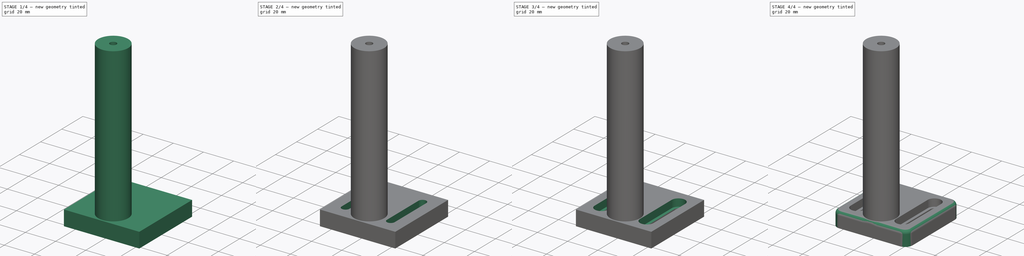
[diagram: build sequence overview — one tinted view per stage of 4, left to right]
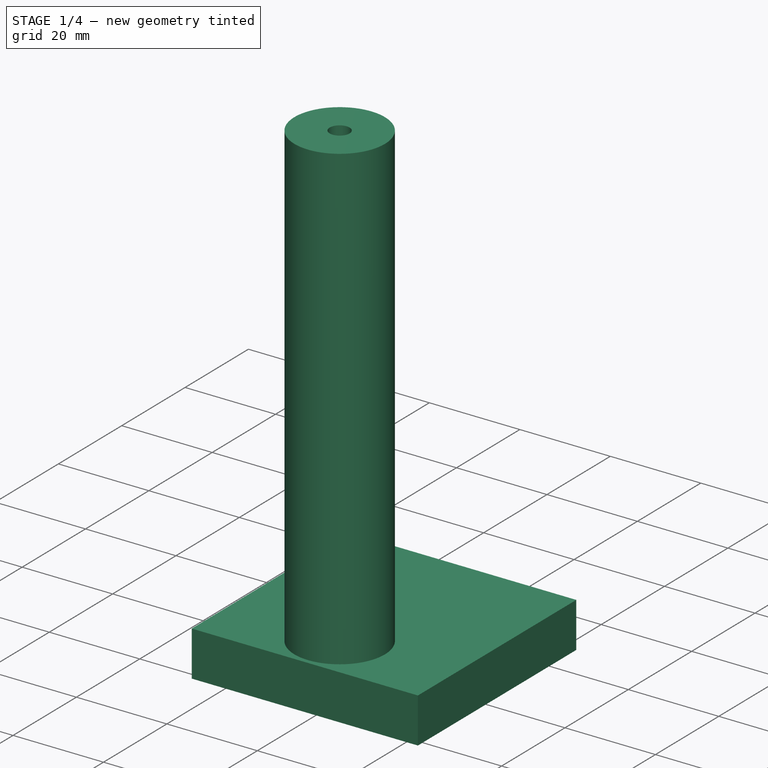
[diagram: stage 1 of 4 — iso view after this stage's code; geometry added in this stage tinted green]
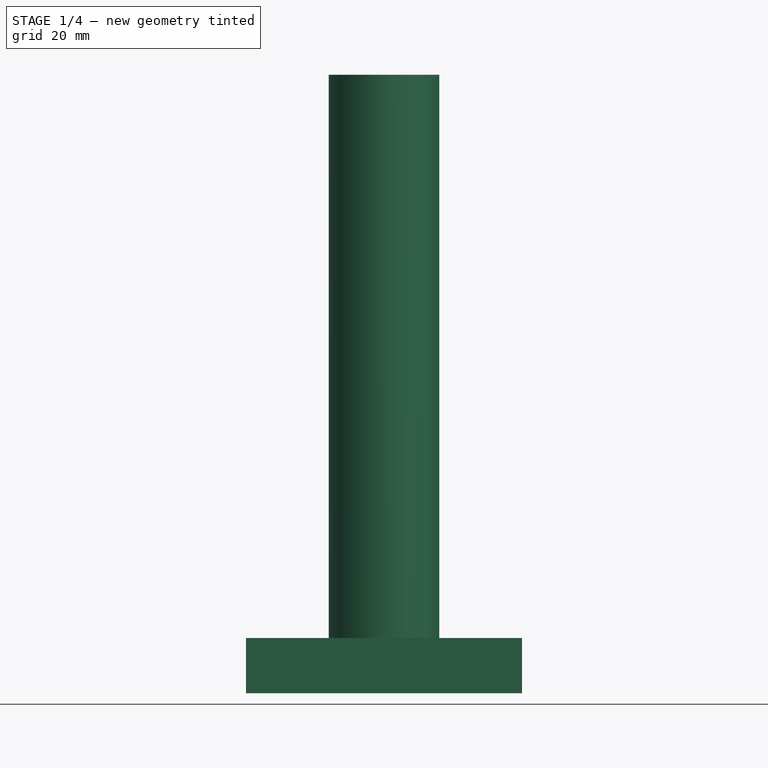
[diagram: stage 1 of 4 — front view after this stage's code; geometry added in this stage tinted green]
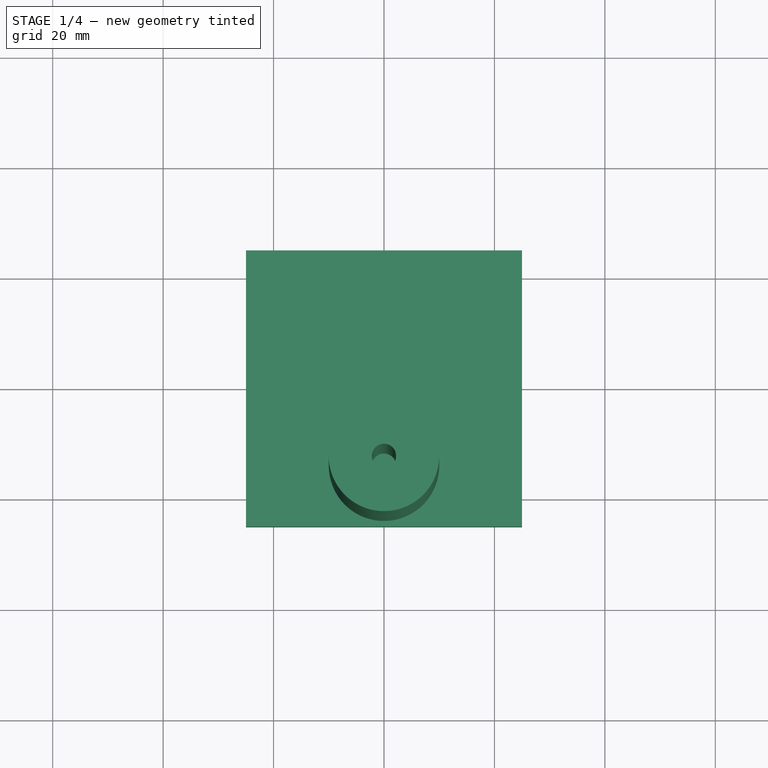
[diagram: stage 1 of 4 — top view after this stage's code; geometry added in this stage tinted green]
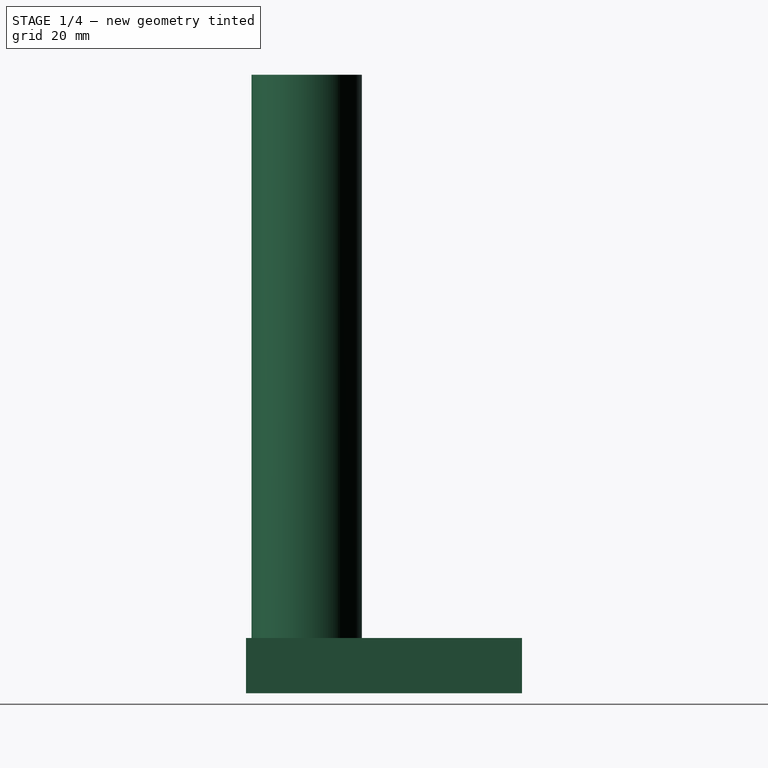
[diagram: stage 1 of 4 — right view after this stage's code; geometry added in this stage tinted green]
FCSTD DOCUMENT  (FreeCAD 0.21R33771 (Git))
Label: bellcrank mount
License: Public Domain
LicenseURL: https://en.wikipedia.org/wiki/Public_domain
objects: Sketcher::SketchObject×2, Part::Extrusion×2, Part::Cut×2, Part::Fillet×2, PartDesign::Line×2, Part::Box×1, PartDesign::CoordinateSystem×1, App::FeaturePython×1, Part::FeaturePython×1, Part::MultiFuse×1, App::Part×1
note: 14 computed .brp shape members not serialized (recipe doc carries the construction recipe); baked Part::Feature solids carry a one-line shape summary decoded from their .brp

FEATURE [Part::Box] Box  label="Cube"
  AttacherType = Attacher::AttachEngine3D
  Height = 10
  Length = 50
  Placement = pos=(-25,-25,0) rot=(0,0,1;0rad)
  Width = 50
  expr: .Placement.Base.x = -1 * Variables.width / 2
  expr: .Placement.Base.y = -1 * Variables.Length / 2
  expr: Length = Variables.width
  expr: Width = Variables.Length
FEATURE [App::FeaturePython] Variables  # WARN: FeaturePython — macro-defined, semantics opaque (R4)
  Length = 50
  Thickness = 10
  Type = App::PropertyContainer
  width = 50
FEATURE [Part::FeaturePython] Tube  # WARN: FeaturePython — macro-defined, semantics opaque (R4)
  AttacherType = Attacher::AttachEngine3D
  Height = 112
  InnerRadius = 2.2
  OuterRadius = 10
  Placement = pos=(0,-14,0) rot=(0,0,1;0rad)
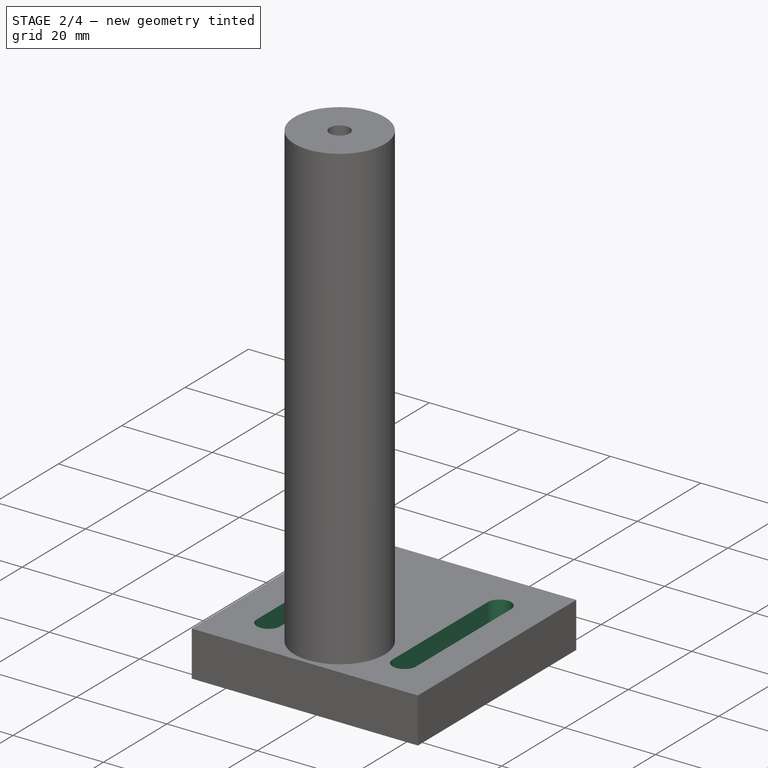
[diagram: stage 2 of 4 — iso view after this stage's code; geometry added in this stage tinted green]
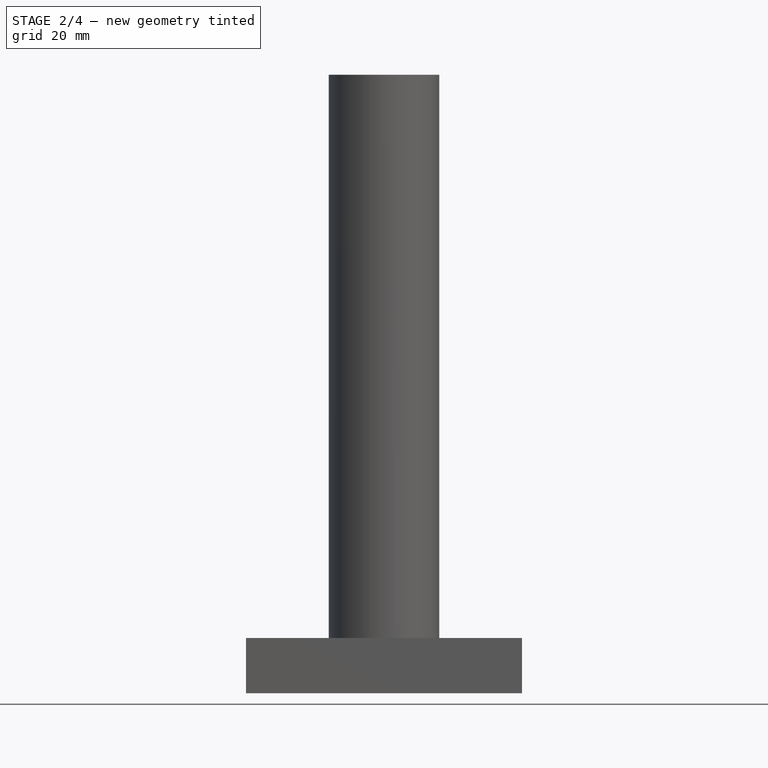
[diagram: stage 2 of 4 — front view after this stage's code; geometry added in this stage tinted green]
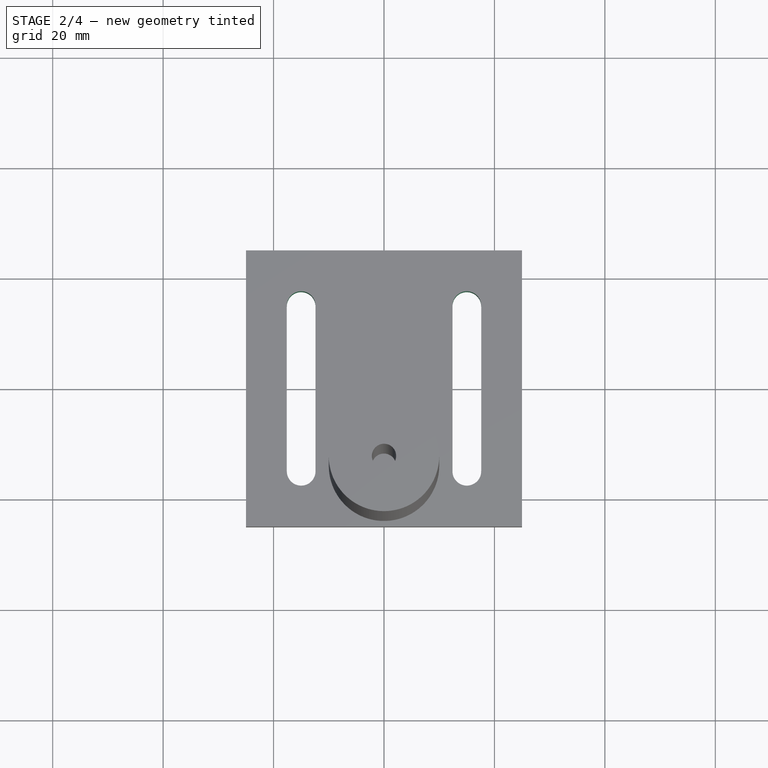
[diagram: stage 2 of 4 — top view after this stage's code; geometry added in this stage tinted green]
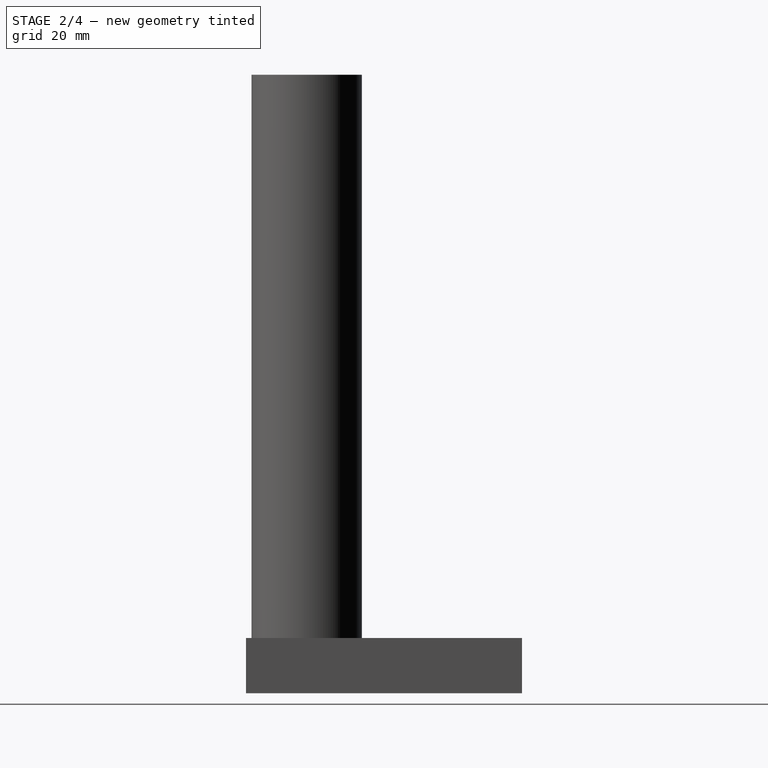
[diagram: stage 2 of 4 — right view after this stage's code; geometry added in this stage tinted green]
FEATURE [PartDesign::CoordinateSystem] LCS_Origin001
  AttacherType = Attacher::AttachEngine3D
  MapMode = 2
  Support = -> [X_Axis001]
FEATURE [Sketcher::SketchObject] Sketch  label="slots profile"
  AttachmentOffset = pos=(25,25,0) rot=(0,0,1;0rad)
  FullyConstrained = true
  MapMode = 5
  Placement = pos=(0,0,10) rot=(0,0,1;0rad)
  Support = -> [Box]
  expr: .AttachmentOffset.Base.x = Variables.width / 2
  expr: .AttachmentOffset.Base.y = Variables.Length / 2
  sketch-geometry (8):
    g0: ArcOfCircle CenterX=15 CenterY=15 CenterZ=0 NormalX=0 NormalY=0 NormalZ=1 AngleXU=0 Radius=2.6 StartAngle=0 EndAngle=3.14159
    g1: ArcOfCircle CenterX=15 CenterY=-15 CenterZ=0 NormalX=0 NormalY=0 NormalZ=1 AngleXU=0 Radius=2.6 StartAngle=3.14159 EndAngle=6.28319
    g2: LineSegment StartX=12.4 StartY=15 StartZ=0 EndX=12.4 EndY=-15 EndZ=0
    g3: LineSegment StartX=17.6 StartY=-15 StartZ=0 EndX=17.6 EndY=15 EndZ=0
    g4: ArcOfCircle CenterX=-15 CenterY=15 CenterZ=0 NormalX=0 NormalY=0 NormalZ=1 AngleXU=0 Radius=2.6 StartAngle=0 EndAngle=3.14159
    g5: ArcOfCircle CenterX=-15 CenterY=-15 CenterZ=0 NormalX=0 NormalY=0 NormalZ=1 AngleXU=0 Radius=2.6 StartAngle=3.14159 EndAngle=6.28319
    g6: LineSegment StartX=-17.6 StartY=15 StartZ=0 EndX=-17.6 EndY=-15 EndZ=0
    g7: LineSegment StartX=-12.4 StartY=-15 StartZ=0 EndX=-12.4 EndY=15 EndZ=0
  constraints (18):
    c: Tangent(g0,g2) = -1.5708
    c: Tangent(g2,g1) = -1.5708
    c: Tangent(g1,g3) = -1.5708
    c: Tangent(g3,g0) = -1.5708
    c: Equal(g0,g1)
    c: Vertical(g2)
    c: Tangent(g4,g6) = -1.5708
    c: Tangent(g6,g5) = -1.5708
    c: Tangent(g5,g7) = -1.5708
    c: Tangent(g7,g4) = -1.5708
    c: Equal(g4,g5)
    c: DistanceY(g5,g4) = 30
    c: Radius(g4) = 2.6
    c: Symmetric(g4,g5,g-1)
    c: Equal(g0,g4)
    c: Equal(g6,g2)
    c: Symmetric(g4,g0,g-2)
    c: DistanceX(g1) = 15
FEATURE [Part::Extrusion] Extrude
  Base = -> Sketch
  Dir = (0,0,1)
  DirMode = 2
  FaceMakerClass = Part::FaceMakerBullseye
  LengthFwd = 10
  LengthRev = 0
  Reversed = true
  Solid = true
  Symmetric = false
FEATURE [Part::Cut] Cut
  Base = -> Box
  Tool = -> Extrude
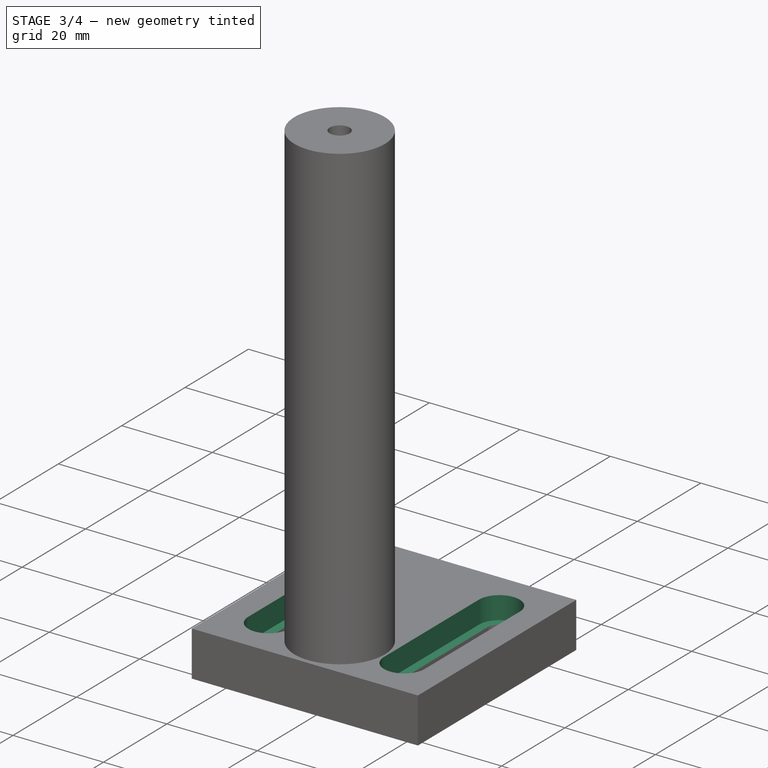
[diagram: stage 3 of 4 — iso view after this stage's code; geometry added in this stage tinted green]
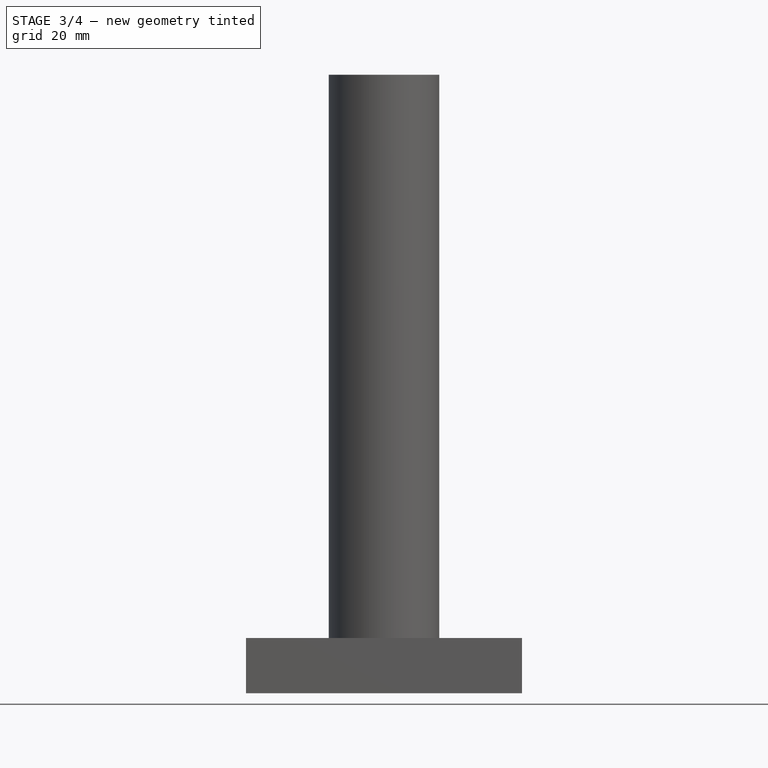
[diagram: stage 3 of 4 — front view after this stage's code; geometry added in this stage tinted green]
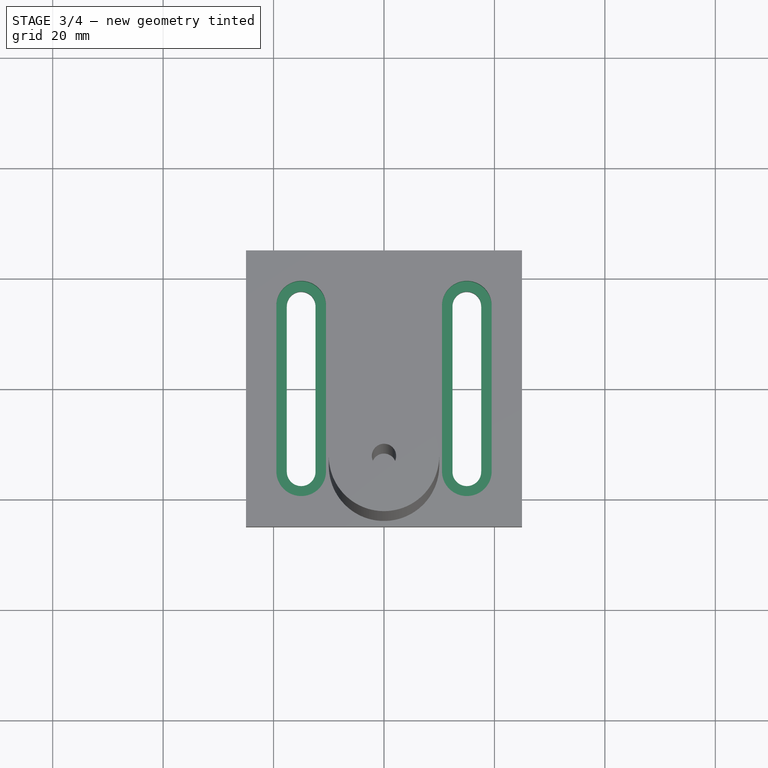
[diagram: stage 3 of 4 — top view after this stage's code; geometry added in this stage tinted green]
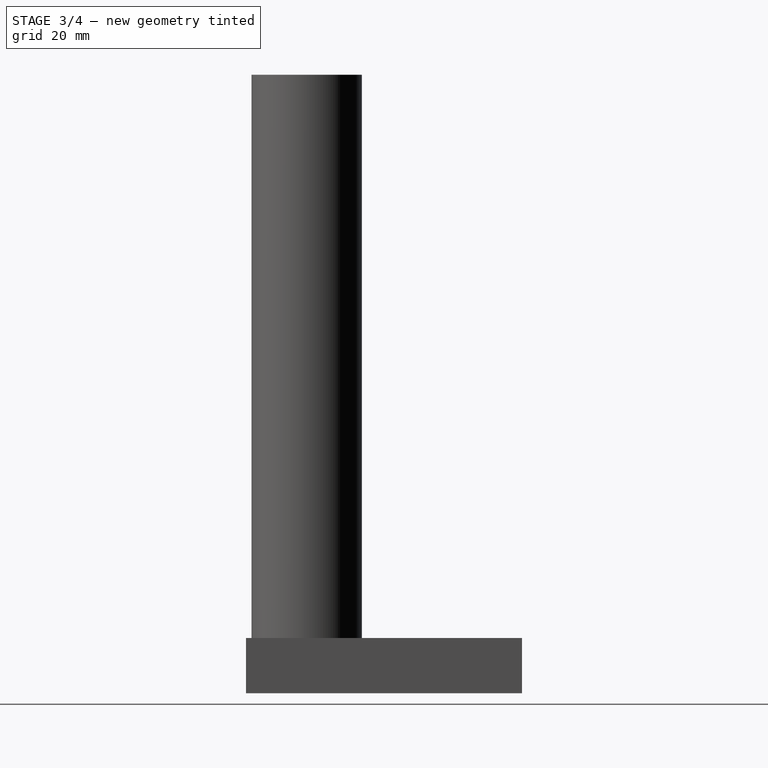
[diagram: stage 3 of 4 — right view after this stage's code; geometry added in this stage tinted green]
FEATURE [Sketcher::SketchObject] Sketch001  label="head slots profile"
  FullyConstrained = true
  MapMode = 5
  Placement = pos=(0,0,10) rot=(0,0,1;0rad)
  Support = -> [Cut]
  expr: Constraints[9] = Sketch.Constraints[17]
  sketch-geometry (8):
    g0: ArcOfCircle CenterX=15 CenterY=14.99 CenterZ=0 NormalX=0 NormalY=0 NormalZ=1 AngleXU=0 Radius=4.5 StartAngle=2e-16 EndAngle=3.14159
    g1: ArcOfCircle CenterX=15 CenterY=-14.99 CenterZ=0 NormalX=0 NormalY=0 NormalZ=1 AngleXU=0 Radius=4.5 StartAngle=3.14159 EndAngle=6.28319
    g2: LineSegment StartX=10.5 StartY=14.99 StartZ=0 EndX=10.5 EndY=-14.99 EndZ=0
    g3: LineSegment StartX=19.5 StartY=-14.99 StartZ=0 EndX=19.5 EndY=14.99 EndZ=0
    g4: ArcOfCircle CenterX=-15 CenterY=-14.99 CenterZ=0 NormalX=0 NormalY=0 NormalZ=1 AngleXU=0 Radius=4.5 StartAngle=3.14159 EndAngle=6.28319
    g5: LineSegment StartX=-19.5 StartY=14.99 StartZ=0 EndX=-19.5 EndY=-14.99 EndZ=0
    g6: LineSegment StartX=-10.5 StartY=-14.99 StartZ=0 EndX=-10.5 EndY=14.99 EndZ=0
    g7: ArcOfCircle CenterX=-15 CenterY=14.99 CenterZ=0 NormalX=0 NormalY=0 NormalZ=1 AngleXU=0 Radius=4.5 StartAngle=2.97773e-09 EndAngle=3.14159
  constraints (20):
    c: Tangent(g0,g2) = -1.5708
    c: Tangent(g2,g1) = -1.5708
    c: Tangent(g1,g3) = -1.5708
    c: Tangent(g3,g0) = -1.5708
    c: Equal(g0,g1)
    c: Vertical(g2)
    c: Tangent(g5,g4) = -1.5708
    c: Tangent(g4,g6) = -1.5708
    c: Equal(g5,g2)
    c: DistanceX(g1) = 15
    c: Coincident(g7,g5)
    c: Coincident(g7,g6)
    c: Radius(g7) = 4.5
    c: Equal(g7,g0)
    c: Symmetric(g7,g0,g-2)
    c: Vertical(g5)
    c: Equal(g4,g7)
    c: DistanceY(g5,g5) = 29.98
    c: Symmetric(g4,g7,g-1)
    c: Vertical(g6)
FEATURE [Part::Extrusion] Extrude001
  Base = -> Sketch001
  Dir = (0,0,1)
  DirMode = 2
  FaceMakerClass = Part::FaceMakerBullseye
  LengthFwd = 5
  LengthRev = 0
  Reversed = true
  Solid = true
  Symmetric = false
FEATURE [Part::Cut] Cut001
  Base = -> Cut
  Tool = -> Extrude001
FEATURE [Part::MultiFuse] Fusion
  Shapes = -> [Cut001,Tube]
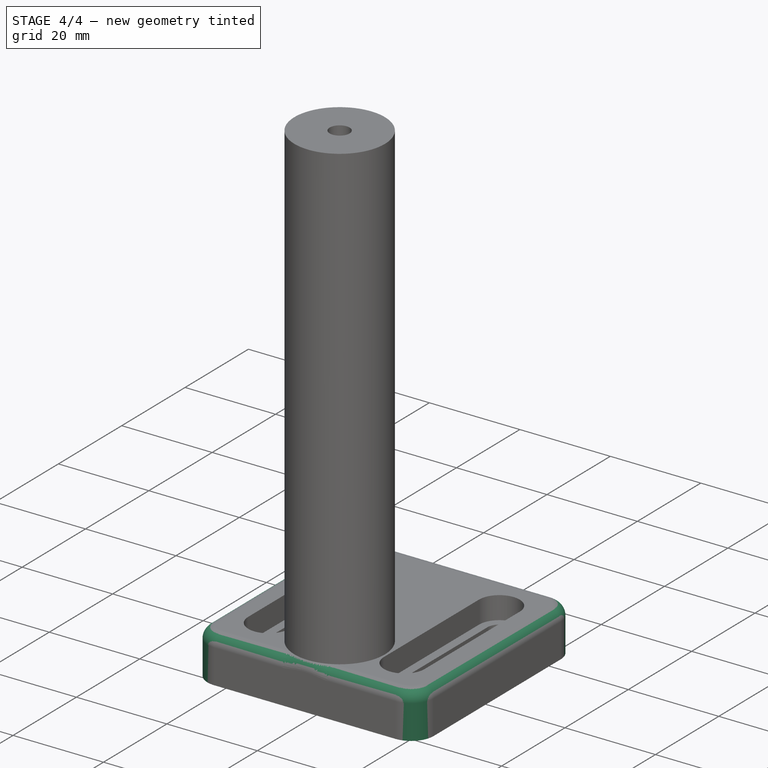
[diagram: stage 4 of 4 — iso view after this stage's code; geometry added in this stage tinted green]
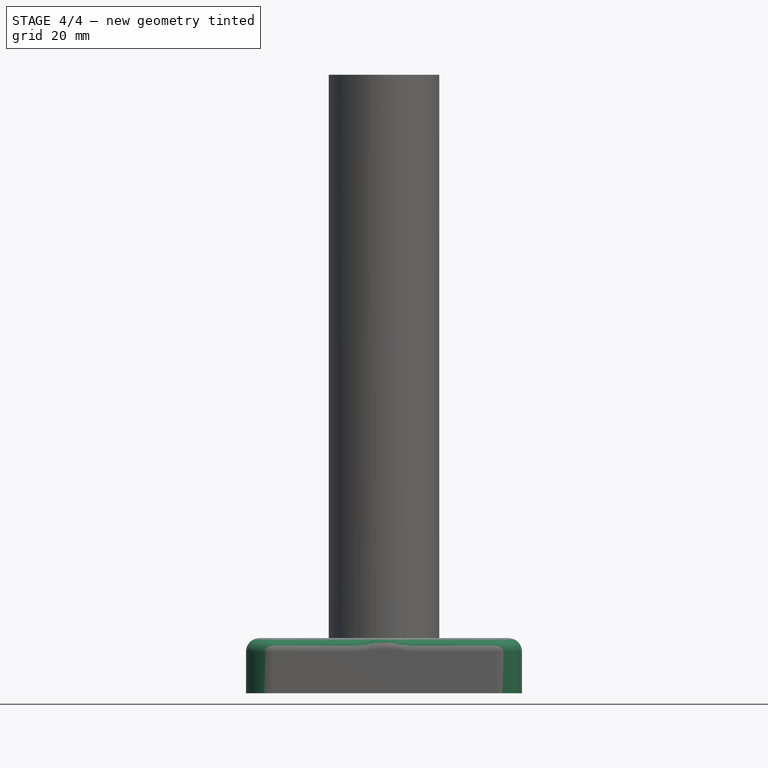
[diagram: stage 4 of 4 — front view after this stage's code; geometry added in this stage tinted green]
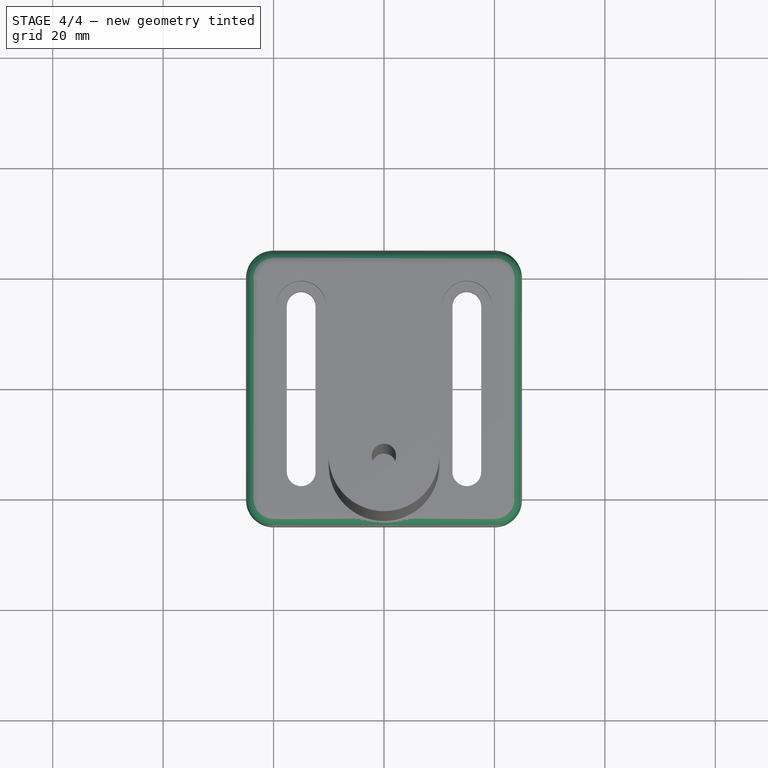
[diagram: stage 4 of 4 — top view after this stage's code; geometry added in this stage tinted green]
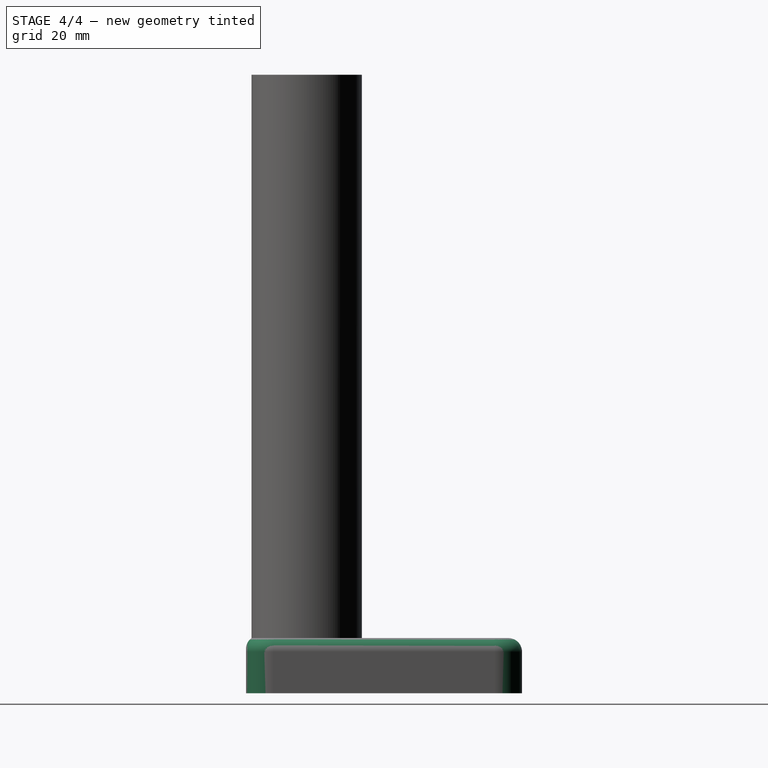
[diagram: stage 4 of 4 — right view after this stage's code; geometry added in this stage tinted green]
FEATURE [Part::Fillet] Fillet
  Base = -> Fusion
  Edges = 4 edges r=5: [Edge1,Edge3,Edge6,Edge20]
FEATURE [Part::Fillet] Fillet001
  Base = -> Fillet
  Edges = 8 edges r=2.5: [Edge1,Edge5,Edge6,Edge7,Edge8,Edge9,Edge10,Edge11]
FEATURE [PartDesign::Line] HoleAxis_1  label="Bellcrank AP 1"
  AttacherType = Attacher::AttachEngineLine
  AttachmentOffset = pos=(0,0,0) rot=(0,1,0;3.14159rad)
  Length = 6.1999
  MapMode = 19
  Placement = pos=(0,-14,112) rot=(0,1,0;3.14159rad)
  ResizeMode = 1
  Support = -> [Fillet001]
FEATURE [PartDesign::Line] HoleAxis_2  label="Bellcrank AP 2"
  AttacherType = Attacher::AttachEngineLine
  Length = 6.1999
  MapMode = 19
  Placement = pos=(0,-14,112) rot=(0,0,1;0rad)
  ResizeMode = 1
  Support = -> [Fillet001]
FEATURE [App::Part] Mount_Base  label="Bellcrank Mount"
  Group = -> [LCS_Origin001,Variables,Box,Cut,Cut001,Extrude,Extrude001,Sketch,Sketch001,Tube,Fusion,Fillet,Fillet001,HoleAxis_1,HoleAxis_2]
  Origin = -> Origin001
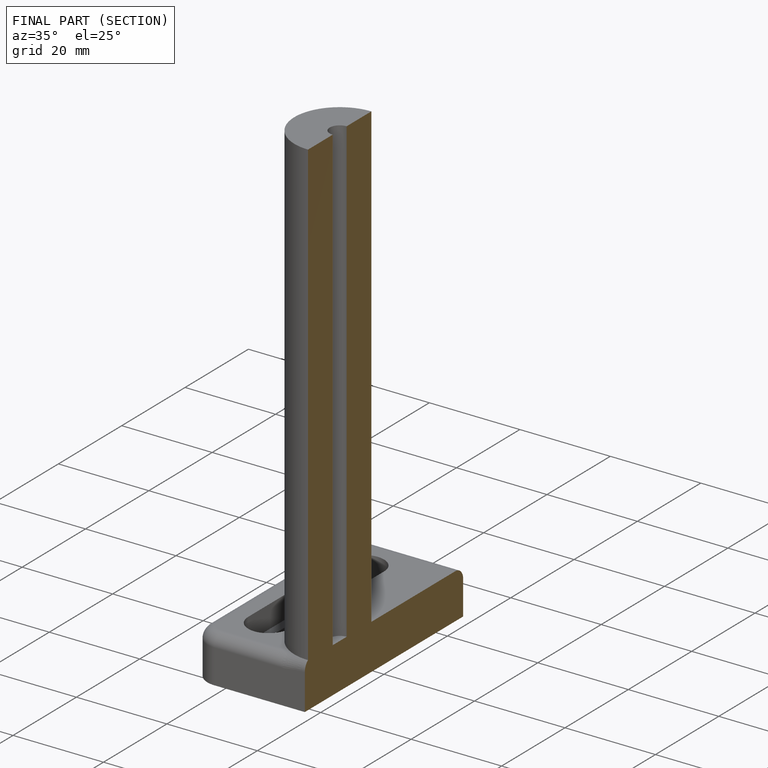
[diagram: finished part — half-section view (interior)]
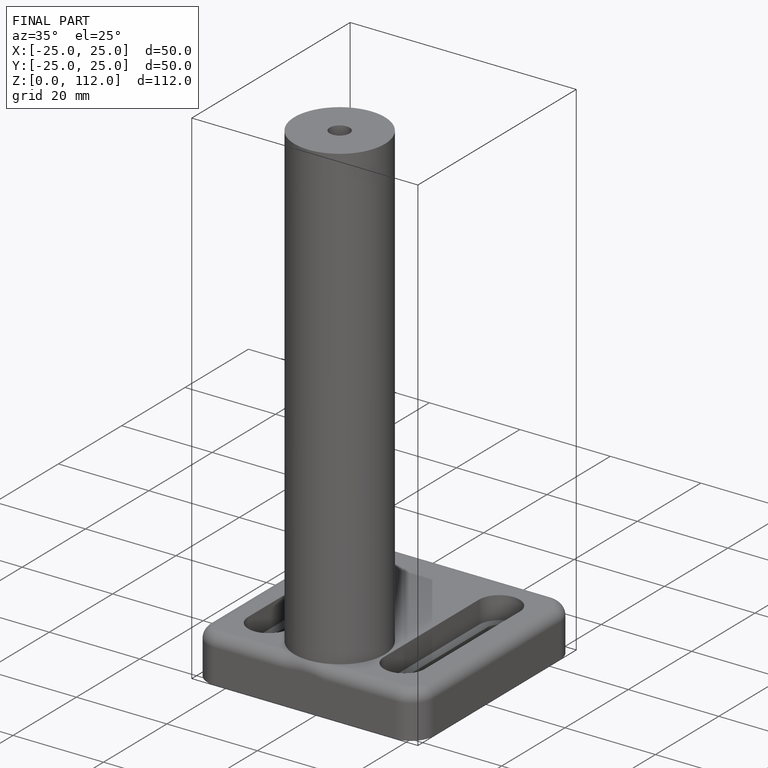
[diagram: finished part — iso view with bounding-box wireframe]
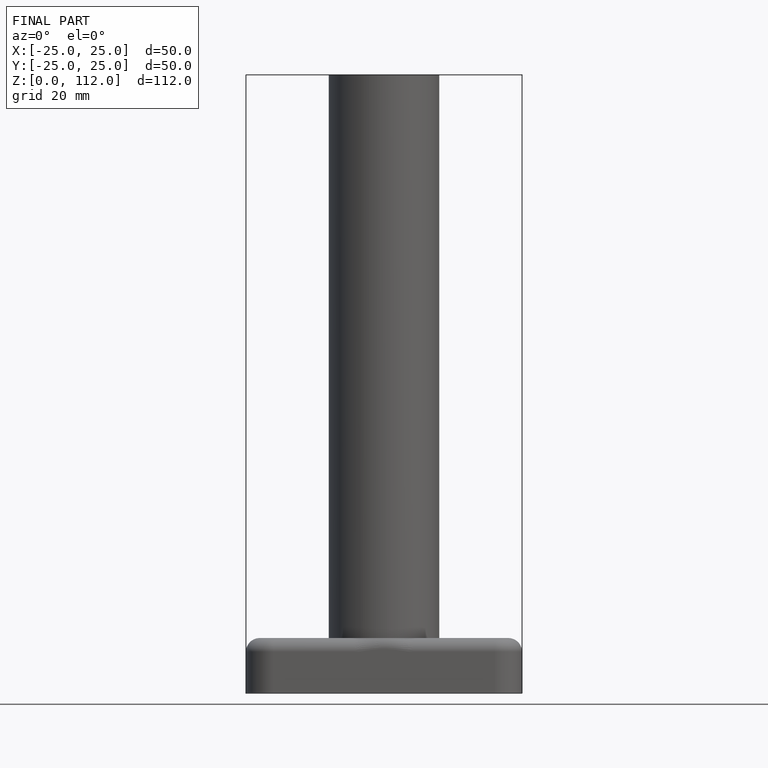
[diagram: finished part — front view with bounding-box wireframe]
